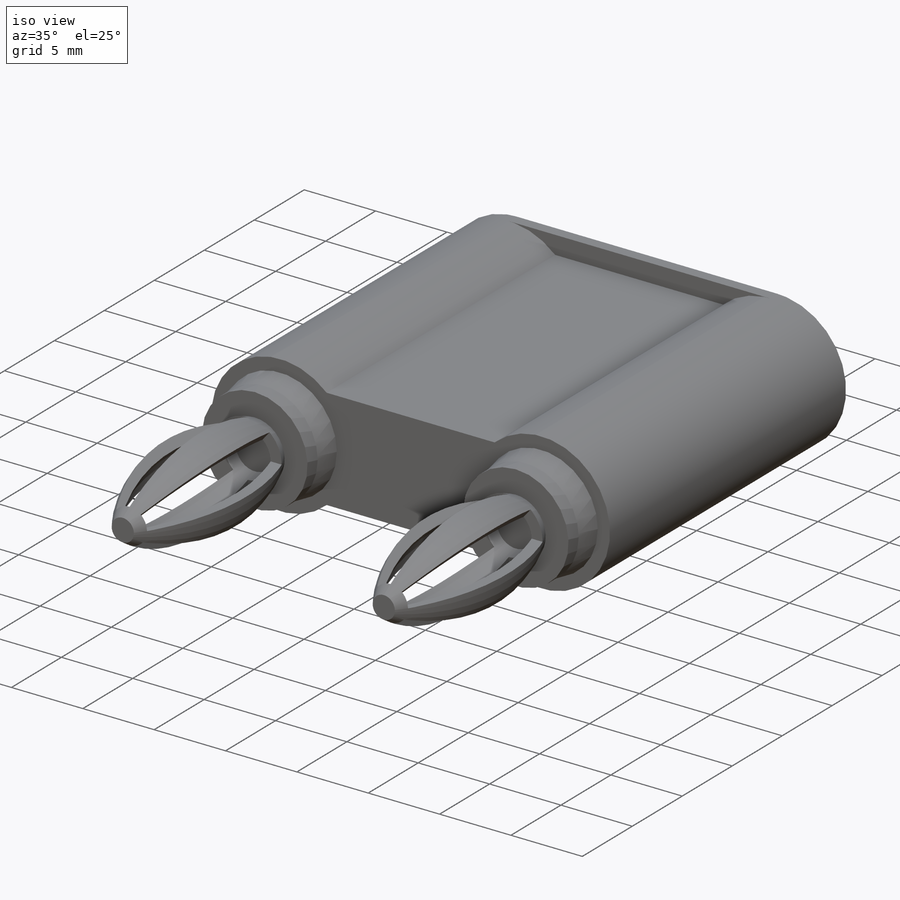
[diagram: iso view]
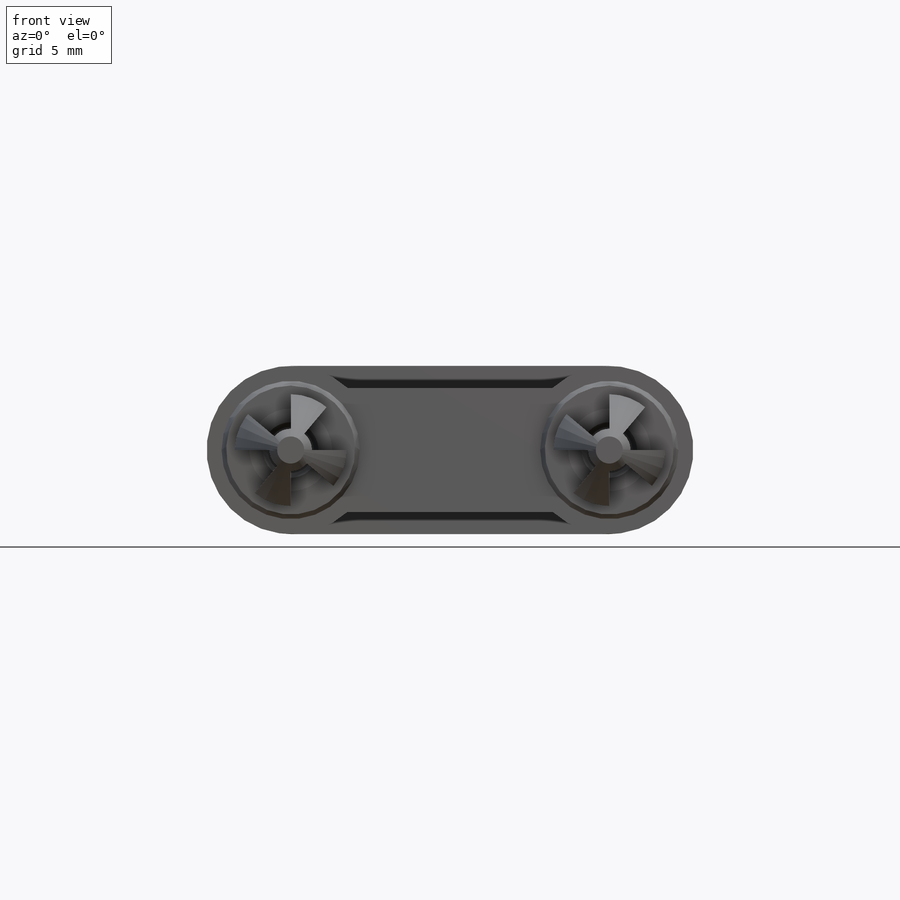
[diagram: front view]
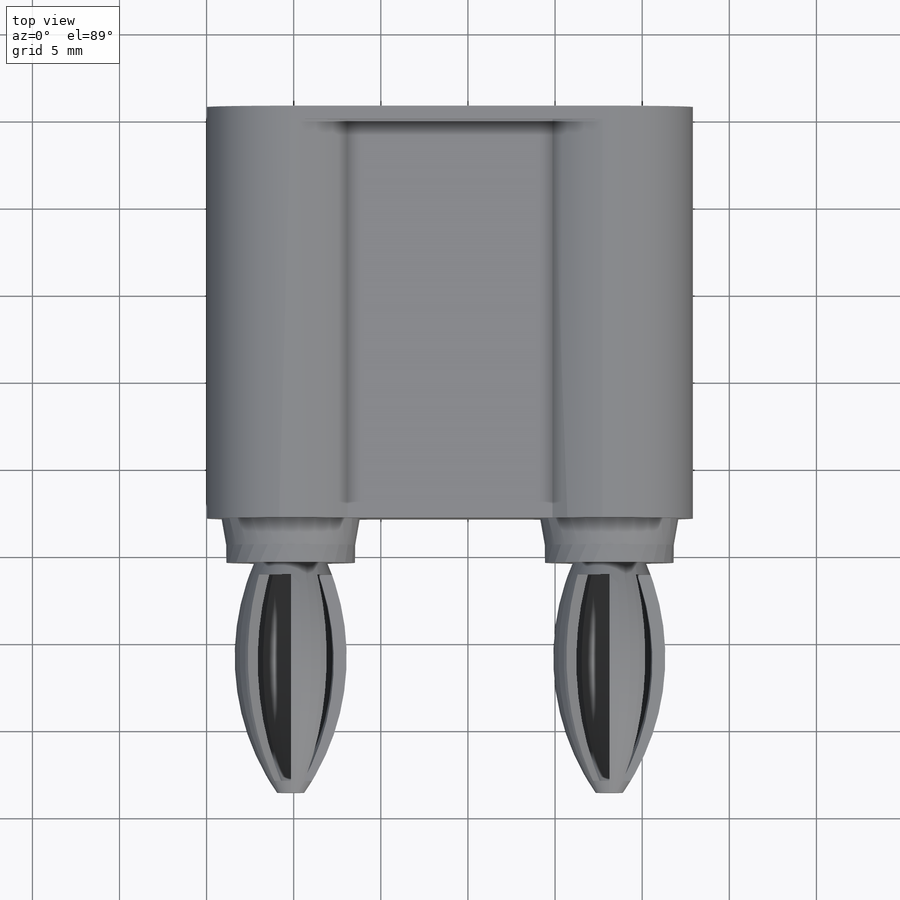
[diagram: top view]
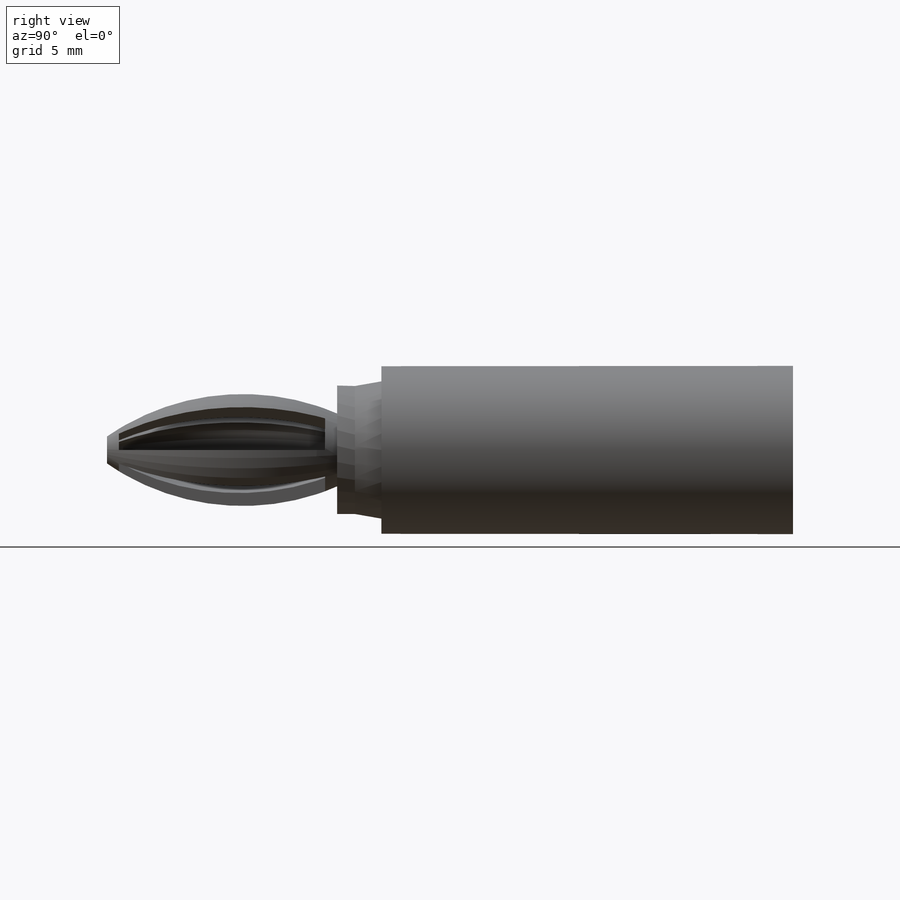
[diagram: right view]
SOLIDWORKS PART (.sldprt)
format: sldprt  version: not decoded by parser v0  size: 407,040 bytes
history: native  units: mm
features: sketch x6, extrude x3, plane x2, cut_revolve x2, material x1, revolve x1, pattern_circular x1, pattern_linear x1 (+13 scaffold rows collapsed)
feature tree (30):
  scaffold x13  (default folders/planes/origin — collapsed)
  material  "Material <not specified>"
  sketch  "Sketch1"  dims[c1.D3=4.826mm c1.D4=4.826mm c1.D5=4.826mm c1.D2=4.826mm c1.D1=9.652mm c2.D2=27.94mm c2.D5=18.288mm c3.D2=18.288mm]
  extrude  "Boss-Extrude1"  Depth=0.762mm
  sketch  "Sketch2"  dims[D3=4.826mm D4=4.826mm D1=1.27mm D2=1.27mm]
  extrude  "Boss-Extrude2"  Depth=22.86mm
  sketch  "Sketch3"  dims[D1=7.9375mm D2=~7.816972mm]
  extrude  "Boss-Extrude3"  Depth=1.524mm
  plane  "Plane1"  Offset=4.826mm
  sketch  "Sketch4"  dims[D1=39.37mm D2=1.016mm]
  revolve  "Revolve1"  Angle=360deg
  sketch  "Sketch6"
  cut_revolve  "Cut-Revolve2"  Angle=360deg
  sketch  "Sketch7"
  cut_revolve  "Cut-Revolve3"  Angle=50deg
  pattern_circular  "CirPattern1"  Count=4 Angle=90deg
  plane  "Plane2"  Offset=13.97mm
  pattern_linear  "LPattern1"  Count1=2 Count2=1 Spacing1=18.288mm Spacing2=2.54mm
decode coverage: 12 of 14 modeling features carry decoded parameters
note: ~ marks probable driven/reference dimensions
note: suppression state not decoded; provenance and decode notes live in map.json
